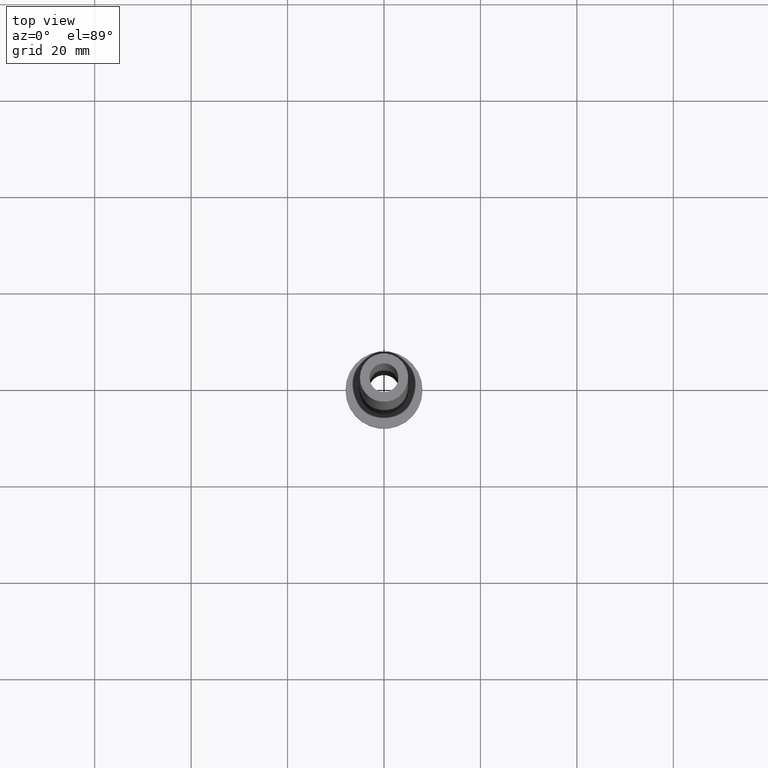
[diagram: clean part render]
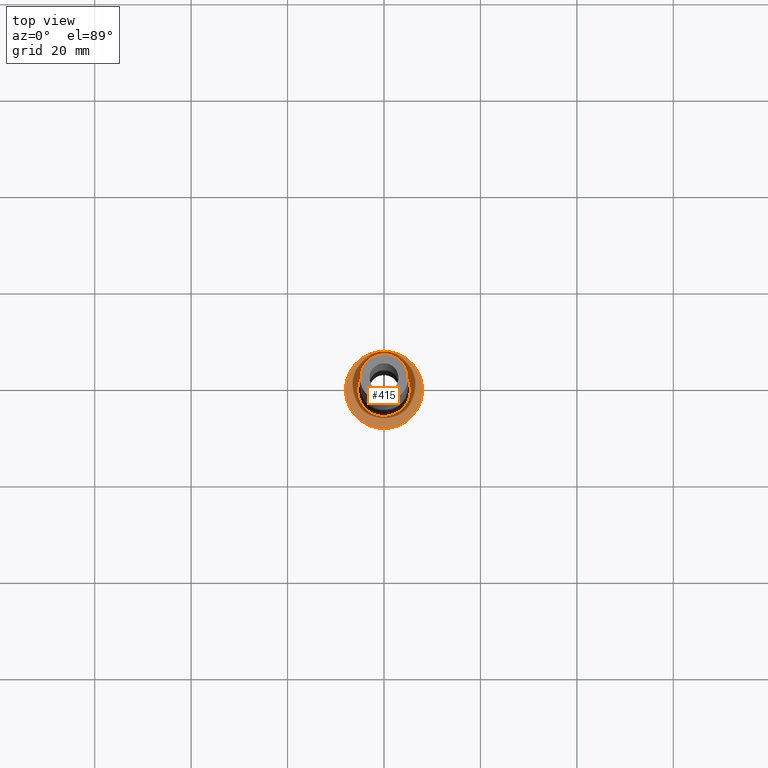
[diagram: same view with one face highlighted and labeled with its STEP entity id]
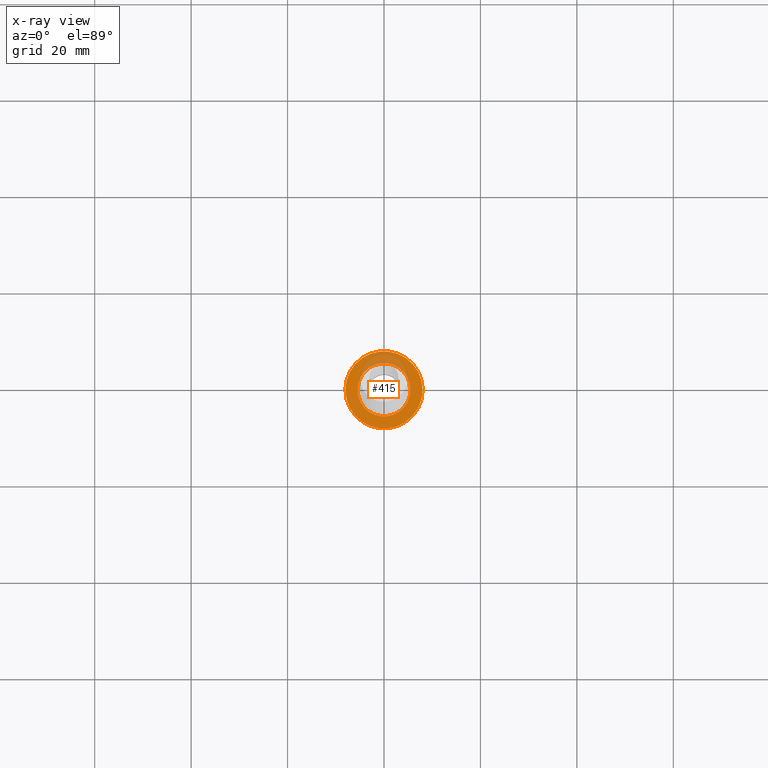
[diagram: x-ray of the same camera — body ghosted, the highlighted face saturated]
A machine part, top view. The second image highlights one B-rep face of the part: STEP entity #415.
The next image is the same camera in x-ray: the body ghosted, the highlighted face saturated — about 18% of this face is hidden behind the body in this view.
In plain terms, the highlighted planar face has unit normal (0, 0, 1).
Its self-contained STEP definition (entity closure, byte-faithful):
#3 = EDGE_CURVE ( 'NONE', #65, #243, #122, .T. ) ;
#8 = CARTESIAN_POINT ( 'NONE',  ( 8.000000000000000000, 9.797174393178825657E-16, 5.000000000000000000 ) ) ;
#26 = CIRCLE ( 'NONE', #149, 5.500000000000000000 ) ;
#32 = DIRECTION ( 'NONE',  ( 0.000000000000000000, 0.000000000000000000, 1.000000000000000000 ) ) ;
#59 = DIRECTION ( 'NONE',  ( 0.000000000000000000, 0.000000000000000000, 1.000000000000000000 ) ) ;
#65 = VERTEX_POINT ( 'NONE', #241 ) ;
#88 = FACE_OUTER_BOUND ( 'NONE', #303, .T. ) ;
#94 = ORIENTED_EDGE ( 'NONE', *, *, #448, .T. ) ;
#98 = AXIS2_PLACEMENT_3D ( 'NONE', #397, #167, #408 ) ;
#99 = EDGE_CURVE ( 'NONE', #461, #143, #298, .T. ) ;
#106 = DIRECTION ( 'NONE',  ( 1.000000000000000000, 0.000000000000000000, 0.000000000000000000 ) ) ;
#108 = CARTESIAN_POINT ( 'NONE',  ( -5.500000000000000000, 6.735557395310442023E-16, 5.000000000000002665 ) ) ;
#122 = CIRCLE ( 'NONE', #98, 5.500000000000000000 ) ;
#143 = VERTEX_POINT ( 'NONE', #8 ) ;
#149 = AXIS2_PLACEMENT_3D ( 'NONE', #350, #314, #240 ) ;
#152 = ORIENTED_EDGE ( 'NONE', *, *, #99, .T. ) ;
#167 = DIRECTION ( 'NONE',  ( -0.000000000000000000, -0.000000000000000000, -1.000000000000000000 ) ) ;
#169 = EDGE_CURVE ( 'NONE', #243, #65, #26, .T. ) ;
#178 = DIRECTION ( 'NONE',  ( 1.000000000000000000, 0.000000000000000000, 0.000000000000000000 ) ) ;
#190 = CARTESIAN_POINT ( 'NONE',  ( -8.000000000000000000, 0.000000000000000000, 5.000000000000000000 ) ) ;
#195 = PLANE ( 'NONE',  #453 ) ;
#211 = CARTESIAN_POINT ( 'NONE',  ( 0.000000000000000000, 0.000000000000000000, 5.000000000000000000 ) ) ;
#221 = AXIS2_PLACEMENT_3D ( 'NONE', #317, #32, #178 ) ;
#240 = DIRECTION ( 'NONE',  ( 1.000000000000000000, 0.000000000000000000, 0.000000000000000000 ) ) ;
#241 = CARTESIAN_POINT ( 'NONE',  ( 5.500000000000000000, 0.000000000000000000, 5.000000000000002665 ) ) ;
#243 = VERTEX_POINT ( 'NONE', #108 ) ;
#253 = DIRECTION ( 'NONE',  ( 1.000000000000000000, 0.000000000000000000, -0.000000000000000000 ) ) ;
#298 = CIRCLE ( 'NONE', #221, 8.000000000000000000 ) ;
#303 = EDGE_LOOP ( 'NONE', ( #152, #94 ) ) ;
#314 = DIRECTION ( 'NONE',  ( -0.000000000000000000, -0.000000000000000000, -1.000000000000000000 ) ) ;
#317 = CARTESIAN_POINT ( 'NONE',  ( 0.000000000000000000, 0.000000000000000000, 5.000000000000000000 ) ) ;
#327 = CIRCLE ( 'NONE', #409, 8.000000000000000000 ) ;
#350 = CARTESIAN_POINT ( 'NONE',  ( 0.000000000000000000, 0.000000000000000000, 5.000000000000000000 ) ) ;
#358 = FACE_BOUND ( 'NONE', #417, .T. ) ;
#397 = CARTESIAN_POINT ( 'NONE',  ( 0.000000000000000000, 0.000000000000000000, 5.000000000000000000 ) ) ;
#398 = CARTESIAN_POINT ( 'NONE',  ( 0.000000000000000000, 0.000000000000000000, 5.000000000000000000 ) ) ;
#408 = DIRECTION ( 'NONE',  ( 1.000000000000000000, 0.000000000000000000, 0.000000000000000000 ) ) ;
#409 = AXIS2_PLACEMENT_3D ( 'NONE', #211, #59, #106 ) ;
#415 = ADVANCED_FACE ( 'NONE', ( #358, #88 ), #195, .T. ) ;
#417 = EDGE_LOOP ( 'NONE', ( #418, #437 ) ) ;
#418 = ORIENTED_EDGE ( 'NONE', *, *, #3, .T. ) ;
#437 = ORIENTED_EDGE ( 'NONE', *, *, #169, .T. ) ;
#439 = DIRECTION ( 'NONE',  ( 0.000000000000000000, 0.000000000000000000, 1.000000000000000000 ) ) ;
#448 = EDGE_CURVE ( 'NONE', #143, #461, #327, .T. ) ;
#453 = AXIS2_PLACEMENT_3D ( 'NONE', #398, #439, #253 ) ;
#461 = VERTEX_POINT ( 'NONE', #190 ) ;